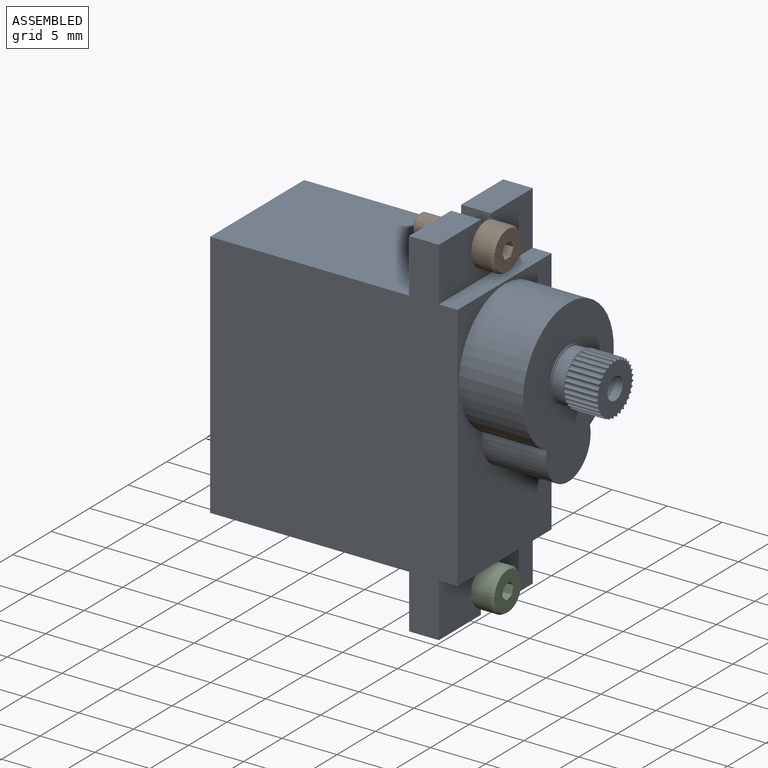
[diagram: assembled view]
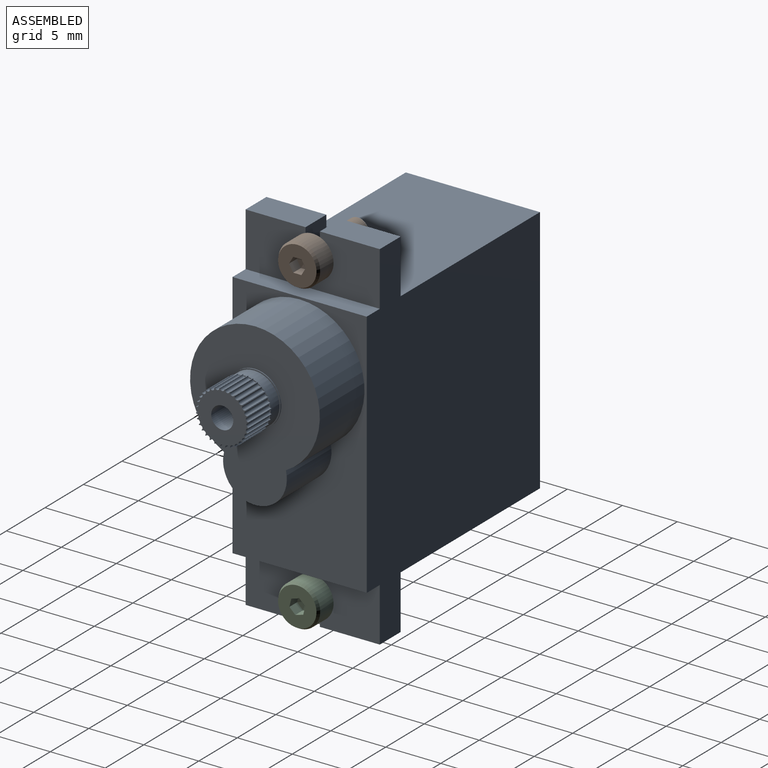
[diagram: assembled view, second angle]
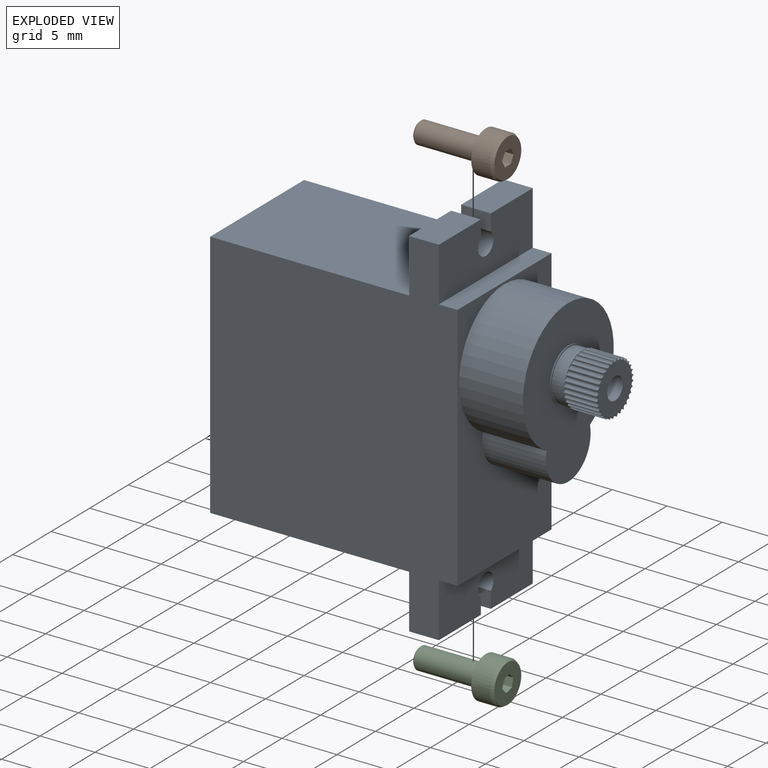
[diagram: exploded view]
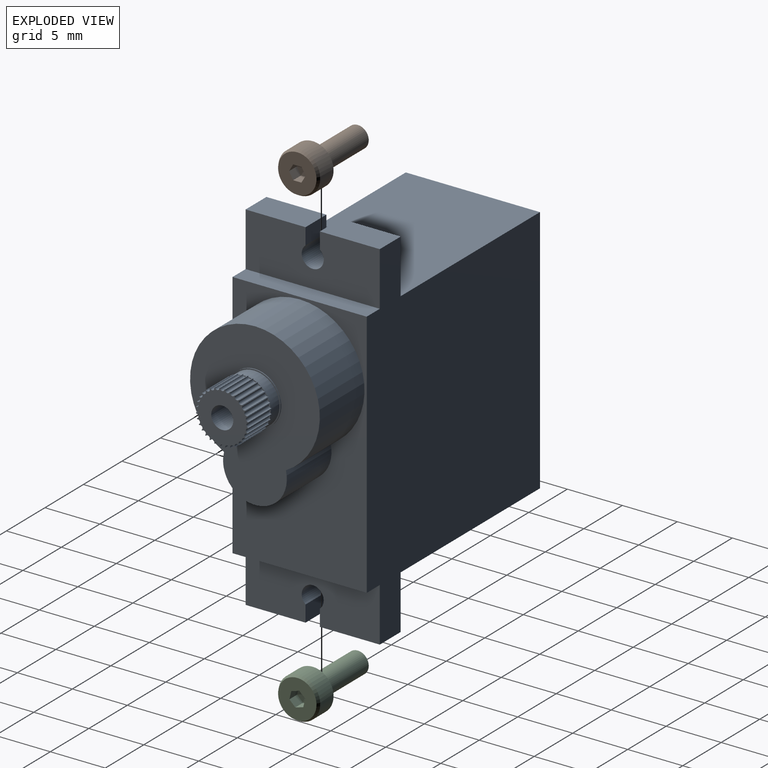
[diagram: exploded view, second angle]
ASSEMBLY  parts=3 mates=2
PART A: 159 faces, bbox 32.5x12.2x32.6 mm
  f0: plane 0.14x0.13mm, normal (0,0,-1), area 0mm2, adj f32,f89,f153,f155
  f1: plane 0.14x0.13mm, normal (0,0,-1), area 0mm2, adj f36,f89,f145,f153
  f2: plane 0.13x0.13mm, normal (0,0,-1), area 0mm2, adj f31,f89,f151,f155
  f3: plane 0.12x0.12mm, normal (0,0,-1), area 0mm2, adj f33,f89,f149,f151
  f4: plane 0.12x0.12mm, normal (0,0,-1), area 0mm2, adj f37,f89,f143,f147
  f5: plane 0.13x0.13mm, normal (0,0,-1), area 0mm2, adj f35,f89,f145,f147
  f6: plane 0.11x0.11mm, normal (0,0,-1), area 0mm2, adj f89,f92,f93,f143
  f7: plane 0.14x0.13mm, normal (0,0,-1), area 0mm2, adj f39,f89,f139,f141
  f8: plane 0.14x0.13mm, normal (0,0,-1), area 0mm2, adj f43,f89,f131,f139
  f9: plane 0.13x0.13mm, normal (0,0,-1), area 0mm2, adj f38,f89,f137,f141
  f10: plane 0.12x0.12mm, normal (0,0,-1), area 0mm2, adj f40,f89,f135,f137
  f11: plane 0.12x0.12mm, normal (0,0,-1), area 0mm2, adj f44,f89,f129,f133
  f12: plane 0.13x0.13mm, normal (0,0,-1), area 0mm2, adj f42,f89,f131,f133
  f13: plane 0.11x0.11mm, normal (0,0,-1), area 0mm2, adj f45,f89,f127,f129
  f14: plane 0.11x0.11mm, normal (0,0,-1), area 0mm2, adj f34,f89,f127,f149
  f15: plane 0.14x0.13mm, normal (0,0,-1), area 0mm2, adj f47,f89,f123,f125
  f16: plane 0.14x0.13mm, normal (0,0,-1), area 0mm2, adj f51,f89,f115,f123
  f17: plane 0.13x0.13mm, normal (0,0,-1), area 0mm2, adj f46,f89,f121,f125
  f18: plane 0.12x0.12mm, normal (0,0,-1), area 0mm2, adj f48,f89,f119,f121
  f19: plane 0.12x0.12mm, normal (0,0,-1), area 0mm2, adj f52,f89,f113,f117
  f20: plane 0.13x0.13mm, normal (0,0,-1), area 0mm2, adj f50,f89,f115,f117
  f21: plane 0.11x0.11mm, normal (0,0,-1), area 0mm2, adj f53,f89,f111,f113
  f22: plane 0.11x0.11mm, normal (0,0,-1), area 0mm2, adj f41,f89,f111,f135
  f23: plane 0.14x0.13mm, normal (0,0,-1), area 0mm2, adj f55,f89,f107,f109
  f24: plane 0.14x0.13mm, normal (0,0,-1), area 0mm2, adj f59,f89,f99,f107
  f25: plane 0.13x0.13mm, normal (0,0,-1), area 0mm2, adj f54,f89,f105,f109
  f26: plane 0.12x0.12mm, normal (0,0,-1), area 0mm2, adj f56,f89,f103,f105
  f27: plane 0.12x0.12mm, normal (0,0,-1), area 0mm2, adj f60,f89,f97,f101
  f28: plane 0.13x0.13mm, normal (0,0,-1), area 0mm2, adj f58,f89,f99,f101
  f29: plane 0.11x0.11mm, normal (0,0,-1), area 0mm2, adj f61,f89,f95,f97
  f30: plane 0.11x0.11mm, normal (0,0,-1), area 0mm2, adj f49,f89,f95,f119
  f31: cylinder r=2.4mm len=3mm, axis (0,0,-1), area 0.2mm2, adj f2,f91,f151,f155
  f32: cylinder r=2.4mm len=3mm, axis (0,0,-1), area 0.2mm2, adj f0,f91,f153,f155
  f33: cylinder r=2.4mm len=3mm, axis (0,0,-1), area 0.2mm2, adj f3,f91,f149,f151
  f34: cylinder r=2.4mm len=3mm, axis (0,0,-1), area 0.2mm2, adj f14,f91,f127,f149
  f35: cylinder r=2.4mm len=3mm, axis (0,0,-1), area 0.2mm2, adj f5,f91,f145,f147
  f36: cylinder r=2.4mm len=3mm, axis (0,0,-1), area 0.2mm2, adj f1,f91,f145,f153
  f37: cylinder r=2.4mm len=3mm, axis (0,0,-1), area 0.2mm2, adj f4,f91,f143,f147
  f38: cylinder r=2.4mm len=3mm, axis (0,0,-1), area 0.2mm2, adj f9,f91,f137,f141
  f39: cylinder r=2.4mm len=3mm, axis (0,0,-1), area 0.2mm2, adj f7,f91,f139,f141
  f40: cylinder r=2.4mm len=3mm, axis (0,0,-1), area 0.2mm2, adj f10,f91,f135,f137
  f41: cylinder r=2.4mm len=3mm, axis (0,0,-1), area 0.2mm2, adj f22,f91,f111,f135
  f42: cylinder r=2.4mm len=3mm, axis (0,0,-1), area 0.2mm2, adj f12,f91,f131,f133
  f43: cylinder r=2.4mm len=3mm, axis (0,0,-1), area 0.2mm2, adj f8,f91,f131,f139
  f44: cylinder r=2.4mm len=3mm, axis (0,0,-1), area 0.2mm2, adj f11,f91,f129,f133
  f45: cylinder r=2.4mm len=3mm, axis (0,0,-1), area 0.2mm2, adj f13,f91,f127,f129
  f46: cylinder r=2.4mm len=3mm, axis (0,0,-1), area 0.2mm2, adj f17,f91,f121,f125
  f47: cylinder r=2.4mm len=3mm, axis (0,0,-1), area 0.2mm2, adj f15,f91,f123,f125
  f48: cylinder r=2.4mm len=3mm, axis (0,0,-1), area 0.2mm2, adj f18,f91,f119,f121
  f49: cylinder r=2.4mm len=3mm, axis (0,0,-1), area 0.2mm2, adj f30,f91,f95,f119
  f50: cylinder r=2.4mm len=3mm, axis (0,0,-1), area 0.2mm2, adj f20,f91,f115,f117
  f51: cylinder r=2.4mm len=3mm, axis (0,0,-1), area 0.2mm2, adj f16,f91,f115,f123
  f52: cylinder r=2.4mm len=3mm, axis (0,0,-1), area 0.2mm2, adj f19,f91,f113,f117
  f53: cylinder r=2.4mm len=3mm, axis (0,0,-1), area 0.2mm2, adj f21,f91,f111,f113
  f54: cylinder r=2.4mm len=3mm, axis (0,0,-1), area 0.2mm2, adj f25,f91,f105,f109
  f55: cylinder r=2.4mm len=3mm, axis (0,0,-1), area 0.2mm2, adj f23,f91,f107,f109
  f56: cylinder r=2.4mm len=3mm, axis (0,0,-1), area 0.2mm2, adj f26,f91,f103,f105
  f57: cylinder r=2.4mm len=3mm, axis (0,0,-1), area 0.2mm2, adj f90,f91,f93,f103
  f58: cylinder r=2.4mm len=3mm, axis (0,0,-1), area 0.2mm2, adj f28,f91,f99,f101
  f59: cylinder r=2.4mm len=3mm, axis (0,0,-1), area 0.2mm2, adj f24,f91,f99,f107
  f60: cylinder r=2.4mm len=3mm, axis (0,0,-1), area 0.2mm2, adj f27,f91,f97,f101
  f61: cylinder r=2.4mm len=3mm, axis (0,0,-1), area 0.2mm2, adj f29,f91,f95,f97
  f62: plane 5.45x2.7mm, normal (-1,0,0), area 14.7mm2, adj f64,f71,f76,f85
  f63: plane 5.45x2.7mm, normal (1,0,0), area 14.7mm2, adj f65,f66,f76,f82
  f64: plane 12.2x4.9mm, normal (0,0,1), area 54.9mm2, adj f62,f69,f70,f76,f77,f85,f86,f87
  f65: plane 12.2x4.9mm, normal (0,0,-1), area 54.9mm2, adj f63,f74,f75,f76,f77,f82,f83,f84
  f66: plane 12.2x4.9mm, normal (0,0,1), area 54.9mm2, adj f63,f67,f75,f76,f77,f82,f83,f84
  f67: plane 12.2x1.7mm, normal (1,0,0), area 20.7mm2, adj f66,f68,f76,f77
  f68: plane 22.7x12.2mm, normal (0,0,1), area 153mm2, adj f67,f69,f76,f77,f78,f79
  f69: plane 12.2x1.7mm, normal (-1,0,0), area 20.7mm2, adj f64,f68,f76,f77
  f70: plane 5.45x2.7mm, normal (-1,0,0), area 14.7mm2, adj f64,f71,f77,f87
  f71: plane 12.2x4.9mm, normal (0,0,-1), area 54.9mm2, adj f62,f70,f72,f76,f77,f85,f86,f87
  f72: plane 18.1x12.2mm, normal (-1,0,0), area 220.8mm2, adj f71,f73,f76,f77
  f73: plane 22.7x12.2mm, normal (0,0,-1), area 276.9mm2, adj f72,f74,f76,f77
  f74: plane 18.1x12.2mm, normal (1,0,0), area 220.8mm2, adj f65,f73,f76,f77
  f75: plane 5.45x2.7mm, normal (1,0,0), area 14.7mm2, adj f65,f66,f77,f83
  f76: plane 32.5x22.5mm, normal (0,-1,0), area 537.2mm2, adj f62,f63,f64,f65,f66,f67,f68,f69
  f77: plane 32.5x22.5mm, normal (0,1,0), area 537.2mm2, adj f64,f65,f66,f67,f68,f69,f70,f71
  f78: cylinder r=5.9mm len=11.8mm, axis (0,0,-1), area 181mm2, adj f68,f79,f80
  f79: cylinder r=2.9mm len=5.8mm, axis (0,0,-1), area 61.2mm2, adj f68,f78,f80
  f80: plane 14.7x11.8mm, normal (0,0,1), area 105.9mm2, adj f78,f79,f81
  f81: cylinder r=2.4mm len=4.8mm, axis (0,0,-1), area 1.5mm2, adj f80,f88
  f82: plane 2.7x1.49mm, normal (0,1,0), area 4mm2, adj f63,f65,f66,f84
  f83: plane 2.7x1.49mm, normal (0,-1,0), area 4mm2, adj f65,f66,f75,f84
  f84: cylinder r=1mm len=2.7mm, axis (0,0,1), area 13.1mm2, adj f65,f66,f82,f83
  f85: plane 2.7x1.49mm, normal (0,1,0), area 4mm2, adj f62,f64,f71,f86
  f86: cylinder r=1mm len=2.7mm, axis (0,0,1), area 13.1mm2, adj f64,f71,f85,f87
  f87: plane 2.7x1.49mm, normal (0,-1,0), area 4mm2, adj f64,f70,f71,f86
  f88: plane 4.8x4.8mm, normal (0,0,1), area 1.5mm2, adj f81,f89
  f89: cylinder r=2.3mm len=4.6mm, axis (0,0,-1), area 16.6mm2, adj f0,f1,f2,f3,f4,f5,f6,f7
  f90: plane 0.11x0.11mm, normal (0,0,-1), area 0mm2, adj f57,f89,f93,f103
  f91: plane 4.78x4.78mm, normal (0,0,1), area 13mm2, adj f31,f32,f33,f34,f35,f36,f37,f38
  f92: cylinder r=2.4mm len=3mm, axis (0,0,-1), area 0.2mm2, adj f6,f91,f93,f143
  f93: cylinder r=0.2mm len=3mm, axis (0,0,1), area 1.8mm2, adj f6,f57,f90,f91,f92,f94
  f94: plane 0.34x0.1mm, normal (0,0,1), area 0mm2, adj f89,f93
  f95: cylinder r=0.2mm len=3mm, axis (0,0,1), area 1.8mm2, adj f29,f30,f49,f61,f91,f96
  f96: plane 0.34x0.1mm, normal (0,0,1), area 0mm2, adj f89,f95
  f97: cylinder r=0.2mm len=3mm, axis (0,0,1), area 1.8mm2, adj f27,f29,f60,f61,f91,f98
  f98: plane 0.33x0.13mm, normal (0,0,1), area 0mm2, adj f89,f97
  f99: cylinder r=0.2mm len=3mm, axis (0,0,1), area 1.8mm2, adj f24,f28,f58,f59,f91,f100
  f100: plane 0.28x0.21mm, normal (0,0,1), area 0mm2, adj f89,f99
  f101: cylinder r=0.2mm len=3mm, axis (0,0,1), area 1.8mm2, adj f27,f28,f58,f60,f91,f102
  f102: plane 0.31x0.17mm, normal (0,0,1), area 0mm2, adj f89,f101
  f103: cylinder r=0.2mm len=3mm, axis (0,0,1), area 1.8mm2, adj f26,f56,f57,f90,f91,f104
  f104: plane 0.33x0.13mm, normal (0,0,1), area 0mm2, adj f89,f103
  f105: cylinder r=0.2mm len=3mm, axis (0,0,1), area 1.8mm2, adj f25,f26,f54,f56,f91,f106
  f106: plane 0.31x0.17mm, normal (0,0,1), area 0mm2, adj f89,f105
  f107: cylinder r=0.2mm len=3mm, axis (0,0,1), area 1.8mm2, adj f23,f24,f55,f59,f91,f108
  f108: plane 0.24x0.24mm, normal (0,0,1), area 0mm2, adj f89,f107
  f109: cylinder r=0.2mm len=3mm, axis (0,0,1), area 1.8mm2, adj f23,f25,f54,f55,f91,f110
  f110: plane 0.28x0.21mm, normal (0,0,1), area 0mm2, adj f89,f109
  f111: cylinder r=0.2mm len=3mm, axis (0,0,1), area 1.8mm2, adj f21,f22,f41,f53,f91,f112
  f112: plane 0.34x0.1mm, normal (0,0,1), area 0mm2, adj f89,f111
  f113: cylinder r=0.2mm len=3mm, axis (0,0,1), area 1.8mm2, adj f19,f21,f52,f53,f91,f114
  f114: plane 0.33x0.13mm, normal (0,0,1), area 0mm2, adj f89,f113
  f115: cylinder r=0.2mm len=3mm, axis (0,0,1), area 1.8mm2, adj f16,f20,f50,f51,f91,f116
  f116: plane 0.28x0.21mm, normal (0,0,1), area 0mm2, adj f89,f115
  f117: cylinder r=0.2mm len=3mm, axis (0,0,1), area 1.8mm2, adj f19,f20,f50,f52,f91,f118
  f118: plane 0.31x0.17mm, normal (0,0,1), area 0mm2, adj f89,f117
  f119: cylinder r=0.2mm len=3mm, axis (0,0,1), area 1.8mm2, adj f18,f30,f48,f49,f91,f120
  f120: plane 0.33x0.13mm, normal (0,0,1), area 0mm2, adj f89,f119
  f121: cylinder r=0.2mm len=3mm, axis (0,0,1), area 1.8mm2, adj f17,f18,f46,f48,f91,f122
  f122: plane 0.31x0.17mm, normal (0,0,1), area 0mm2, adj f89,f121
  f123: cylinder r=0.2mm len=3mm, axis (0,0,1), area 1.8mm2, adj f15,f16,f47,f51,f91,f124
  f124: plane 0.24x0.24mm, normal (0,0,1), area 0mm2, adj f89,f123
  f125: cylinder r=0.2mm len=3mm, axis (0,0,1), area 1.8mm2, adj f15,f17,f46,f47,f91,f126
  f126: plane 0.28x0.21mm, normal (0,0,1), area 0mm2, adj f89,f125
  f127: cylinder r=0.2mm len=3mm, axis (0,0,1), area 1.8mm2, adj f13,f14,f34,f45,f91,f128
  f128: plane 0.34x0.1mm, normal (0,0,1), area 0mm2, adj f89,f127
  f129: cylinder r=0.2mm len=3mm, axis (0,0,1), area 1.8mm2, adj f11,f13,f44,f45,f91,f130
  f130: plane 0.33x0.13mm, normal (0,0,1), area 0mm2, adj f89,f129
  f131: cylinder r=0.2mm len=3mm, axis (0,0,1), area 1.8mm2, adj f8,f12,f42,f43,f91,f132
  f132: plane 0.28x0.21mm, normal (0,0,1), area 0mm2, adj f89,f131
  f133: cylinder r=0.2mm len=3mm, axis (0,0,1), area 1.8mm2, adj f11,f12,f42,f44,f91,f134
  f134: plane 0.31x0.17mm, normal (0,0,1), area 0mm2, adj f89,f133
  f135: cylinder r=0.2mm len=3mm, axis (0,0,1), area 1.8mm2, adj f10,f22,f40,f41,f91,f136
  f136: plane 0.33x0.13mm, normal (0,0,1), area 0mm2, adj f89,f135
  f137: cylinder r=0.2mm len=3mm, axis (0,0,1), area 1.8mm2, adj f9,f10,f38,f40,f91,f138
  f138: plane 0.31x0.17mm, normal (0,0,1), area 0mm2, adj f89,f137
  f139: cylinder r=0.2mm len=3mm, axis (0,0,1), area 1.8mm2, adj f7,f8,f39,f43,f91,f140
  f140: plane 0.24x0.24mm, normal (0,0,1), area 0mm2, adj f89,f139
  f141: cylinder r=0.2mm len=3mm, axis (0,0,1), area 1.8mm2, adj f7,f9,f38,f39,f91,f142
  f142: plane 0.28x0.21mm, normal (0,0,1), area 0mm2, adj f89,f141
  f143: cylinder r=0.2mm len=3mm, axis (0,0,1), area 1.8mm2, adj f4,f6,f37,f91,f92,f144
  f144: plane 0.33x0.13mm, normal (0,0,1), area 0mm2, adj f89,f143
  f145: cylinder r=0.2mm len=3mm, axis (0,0,1), area 1.8mm2, adj f1,f5,f35,f36,f91,f146
  f146: plane 0.28x0.21mm, normal (0,0,1), area 0mm2, adj f89,f145
  f147: cylinder r=0.2mm len=3mm, axis (0,0,1), area 1.8mm2, adj f4,f5,f35,f37,f91,f148
  f148: plane 0.31x0.17mm, normal (0,0,1), area 0mm2, adj f89,f147
  f149: cylinder r=0.2mm len=3mm, axis (0,0,1), area 1.8mm2, adj f3,f14,f33,f34,f91,f150
  f150: plane 0.33x0.13mm, normal (0,0,1), area 0mm2, adj f89,f149
  f151: cylinder r=0.2mm len=3mm, axis (0,0,1), area 1.8mm2, adj f2,f3,f31,f33,f91,f152
  f152: plane 0.31x0.17mm, normal (0,0,1), area 0mm2, adj f89,f151
  f153: cylinder r=0.2mm len=3mm, axis (0,0,1), area 1.8mm2, adj f0,f1,f32,f36,f91,f154
  f154: plane 0.24x0.24mm, normal (0,0,1), area 0mm2, adj f89,f153
  f155: cylinder r=0.2mm len=3mm, axis (0,0,1), area 1.8mm2, adj f0,f2,f31,f32,f91,f156
  f156: plane 0.28x0.21mm, normal (0,0,1), area 0mm2, adj f89,f155
  f157: cylinder r=1mm len=5mm, axis (0,0,1), area 31.4mm2, adj f91,f158
  f158: plane 2x2mm, normal (0,0,1), area 3.1mm2, adj f157
PART B: 19 faces, bbox 3.8x8x3.8 mm
  f0: plane 3.49x3.49mm, normal (0,-1,0), area 8.1mm2, adj f3,f10,f11,f12,f13,f14,f15
  f1: cylinder r=1.9mm len=3.8mm, axis (0,1,0), area 20.7mm2, adj f2,f3
  f2: plane 3.8x3.8mm, normal (0,1,0), area 8.3mm2, adj f1,f16
  f3: cone r=1.9mm half-angle=30deg, axis (0,1,0), area 3.5mm2, adj f0,f1
  f4: plane 0.75x0.65mm, normal (-0.13,-0.99,0.08), area 0.2mm2, adj f5,f9,f12
  f5: plane 0.75x0.65mm, normal (0,-0.99,0.15), area 0.2mm2, adj f4,f6,f13
  f6: plane 0.75x0.65mm, normal (0.13,-0.99,0.08), area 0.2mm2, adj f5,f7,f14
  f7: plane 0.75x0.65mm, normal (0.13,-0.99,-0.08), area 0.2mm2, adj f6,f8,f15
  f8: plane 0.75x0.65mm, normal (0,-0.99,-0.15), area 0.2mm2, adj f7,f9,f10
  f9: plane 0.75x0.65mm, normal (-0.13,-0.99,-0.08), area 0.2mm2, adj f4,f8,f11
  f10: plane 1x0.75mm, normal (0,0,-1), area 0.8mm2, adj f0,f8,f11,f15
  f11: plane 1x0.65mm, normal (-0.87,0,-0.5), area 0.7mm2, adj f0,f9,f10,f12
  f12: plane 1x0.65mm, normal (-0.87,0,0.5), area 0.7mm2, adj f0,f4,f11,f13
  f13: plane 1x0.75mm, normal (0,0,1), area 0.8mm2, adj f0,f5,f12,f14
  f14: plane 1x0.65mm, normal (0.87,0,0.5), area 0.7mm2, adj f0,f6,f13,f15
  f15: plane 1x0.65mm, normal (0.87,0,-0.5), area 0.7mm2, adj f0,f7,f10,f14
  f16: cylinder r=0.99mm len=5.86mm, axis (0,-1,0), area 36.5mm2, adj f2,f18
  f17: plane 1.7x1.7mm, normal (0,1,0), area 2.3mm2, adj f18
  f18: cone r=0.85mm half-angle=45deg, axis (0,-1,0), area 1.1mm2, adj f16,f17
PART C: same geometry as B
PLACE A rot(axis=(0,1,0),90deg) t=(3.65,14.07,19.75)mm fixed
PLACE B rot(axis=(0.71,-0.71,0),180deg) t=(26.45,7.97,33.75)mm
PLACE C rot(axis=(-0.35,0.35,0.87),98deg) t=(26.45,7.98,5.75)mm
MATE revolute C.f1 <-> A.f84  axis (-1,0,0) through (24.45,7.98,5.75)mm
MATE revolute B.f1 <-> A.f86  axis (-1,0,0) through (24.45,7.97,33.75)mm
